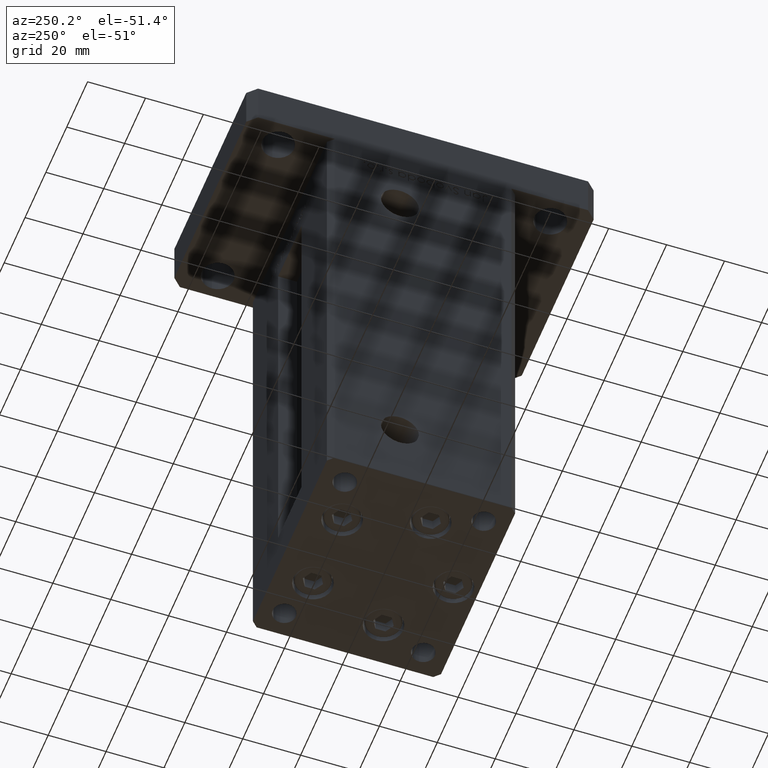
[diagram: clean part render]
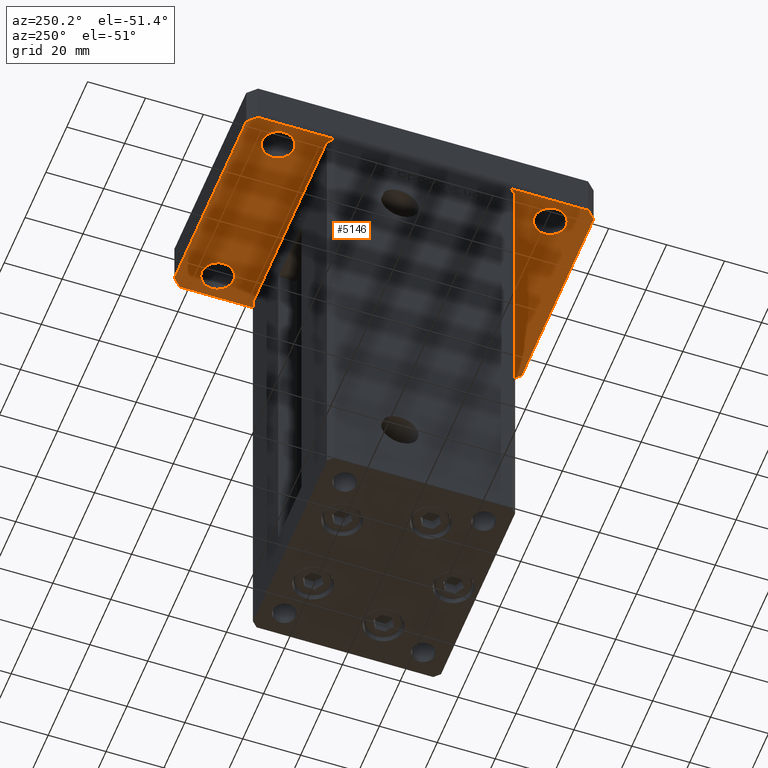
[diagram: same view with one face highlighted and labeled with its STEP entity id]
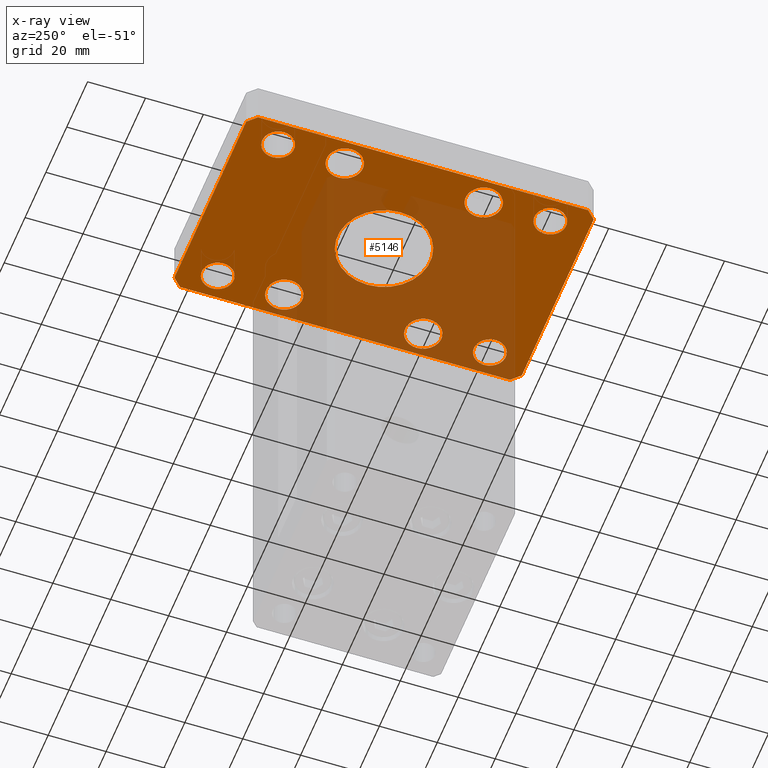
[diagram: x-ray of the same camera — body ghosted, the highlighted face saturated]
A machine part, auxiliary view. The second image highlights one B-rep face of the part: STEP entity #5146.
The next image is the same camera in x-ray: the body ghosted, the highlighted face saturated — about 46% of this face is hidden behind the body in this view.
In plain terms, the highlighted planar face has unit normal (0, 0, 1).
Its self-contained STEP definition (entity closure, byte-faithful):
#273 = LINE ( 'NONE', #24940, #40998 ) ;
#336 = DIRECTION ( 'NONE',  ( -0.7071067811865507924, -0.7071067811865442421, 0.000000000000000000 ) ) ;
#687 = ORIENTED_EDGE ( 'NONE', *, *, #38490, .F. ) ;
#722 = CIRCLE ( 'NONE', #28432, 5.499999999999994671 ) ;
#1077 = VERTEX_POINT ( 'NONE', #33748 ) ;
#1396 = CIRCLE ( 'NONE', #33435, 6.249999999999998224 ) ;
#1484 = ORIENTED_EDGE ( 'NONE', *, *, #9027, .T. ) ;
#1683 = LINE ( 'NONE', #20468, #36235 ) ;
#1791 = VERTEX_POINT ( 'NONE', #37146 ) ;
#1886 = EDGE_LOOP ( 'NONE', ( #50684, #12584 ) ) ;
#2349 = VERTEX_POINT ( 'NONE', #16273 ) ;
#2410 = VERTEX_POINT ( 'NONE', #42551 ) ;
#2537 = ORIENTED_EDGE ( 'NONE', *, *, #34919, .T. ) ;
#2787 = AXIS2_PLACEMENT_3D ( 'NONE', #7326, #39850, #23869 ) ;
#3444 = CARTESIAN_POINT ( 'NONE',  ( -34.49999999999992184, 59.99999999999997158, 0.000000000000000000 ) ) ;
#3447 = DIRECTION ( 'NONE',  ( 0.000000000000000000, 0.000000000000000000, 1.000000000000000000 ) ) ;
#3926 = DIRECTION ( 'NONE',  ( 1.000000000000000000, 0.000000000000000000, 0.000000000000000000 ) ) ;
#4123 = ORIENTED_EDGE ( 'NONE', *, *, #38648, .T. ) ;
#4140 = ORIENTED_EDGE ( 'NONE', *, *, #34947, .T. ) ;
#4328 = DIRECTION ( 'NONE',  ( 0.000000000000000000, 1.000000000000000000, 0.000000000000000000 ) ) ;
#4393 = LINE ( 'NONE', #49377, #46001 ) ;
#4702 = FACE_BOUND ( 'NONE', #42196, .T. ) ;
#5146 = ADVANCED_FACE ( 'NONE', ( #45900, #26116, #38572, #34503, #8771, #41831, #4702, #33706, #21228, #37776 ), #50227, .F. ) ;
#5372 = AXIS2_PLACEMENT_3D ( 'NONE', #25854, #42373, #17704 ) ;
#5953 = ORIENTED_EDGE ( 'NONE', *, *, #47015, .F. ) ;
#6263 = EDGE_CURVE ( 'NONE', #1791, #23581, #1683, .T. ) ;
#6273 = DIRECTION ( 'NONE',  ( 1.000000000000000000, 0.000000000000000000, 0.000000000000000000 ) ) ;
#7257 = DIRECTION ( 'NONE',  ( 1.000000000000000000, 0.000000000000000000, 0.000000000000000000 ) ) ;
#7326 = CARTESIAN_POINT ( 'NONE',  ( -28.99999999999999645, -24.00000000000002132, 0.000000000000000000 ) ) ;
#7540 = ORIENTED_EDGE ( 'NONE', *, *, #13568, .F. ) ;
#7771 = CIRCLE ( 'NONE', #48418, 6.249999999999998224 ) ;
#8030 = VECTOR ( 'NONE', #29401, 1000.000000000000000 ) ;
#8114 = CARTESIAN_POINT ( 'NONE',  ( 16.00000000000000000, 1.959434878635765131E-15, 0.000000000000000000 ) ) ;
#8183 = CIRCLE ( 'NONE', #24638, 6.249999999999998224 ) ;
#8239 = CARTESIAN_POINT ( 'NONE',  ( 29.00000000000000711, 47.00000000000000711, 0.000000000000000000 ) ) ;
#8462 = LINE ( 'NONE', #37471, #31263 ) ;
#8771 = FACE_BOUND ( 'NONE', #47608, .T. ) ;
#8769 = AXIS2_PLACEMENT_3D ( 'NONE', #15055, #23194, #51676 ) ;
#8772 = DIRECTION ( 'NONE',  ( 0.000000000000000000, 0.000000000000000000, 1.000000000000000000 ) ) ;
#9027 = EDGE_CURVE ( 'NONE', #40072, #25250, #34588, .T. ) ;
#9311 = CARTESIAN_POINT ( 'NONE',  ( 37.50000000000011369, 56.99999999999988631, 0.000000000000000000 ) ) ;
#9602 = EDGE_CURVE ( 'NONE', #11360, #26323, #722, .T. ) ;
#9944 = DIRECTION ( 'NONE',  ( 1.000000000000000000, 0.000000000000000000, 0.000000000000000000 ) ) ;
#10258 = AXIS2_PLACEMENT_3D ( 'NONE', #29216, #39192, #9944 ) ;
#10369 = ORIENTED_EDGE ( 'NONE', *, *, #26528, .T. ) ;
#10447 = CARTESIAN_POINT ( 'NONE',  ( -29.00000000000000355, 24.00000000000000000, 0.000000000000000000 ) ) ;
#10742 = VERTEX_POINT ( 'NONE', #17908 ) ;
#10981 = VERTEX_POINT ( 'NONE', #14511 ) ;
#11360 = VERTEX_POINT ( 'NONE', #31535 ) ;
#11621 = DIRECTION ( 'NONE',  ( 1.000000000000000000, 0.000000000000000000, 0.000000000000000000 ) ) ;
#11947 = ORIENTED_EDGE ( 'NONE', *, *, #41270, .T. ) ;
#12062 = DIRECTION ( 'NONE',  ( 1.000000000000000000, 0.000000000000000000, 0.000000000000000000 ) ) ;
#12092 = DIRECTION ( 'NONE',  ( 0.000000000000000000, 0.000000000000000000, -1.000000000000000000 ) ) ;
#12095 = AXIS2_PLACEMENT_3D ( 'NONE', #8239, #8772, #12823 ) ;
#12584 = ORIENTED_EDGE ( 'NONE', *, *, #22012, .T. ) ;
#12659 = EDGE_LOOP ( 'NONE', ( #23902, #5953, #52474, #53116, #35609, #37714, #7540, #48858 ) ) ;
#12823 = DIRECTION ( 'NONE',  ( 1.000000000000000000, 0.000000000000000000, 0.000000000000000000 ) ) ;
#12871 = DIRECTION ( 'NONE',  ( 0.000000000000000000, 0.000000000000000000, 1.000000000000000000 ) ) ;
#12983 = CARTESIAN_POINT ( 'NONE',  ( 29.00000000000000711, 24.00000000000000711, 0.000000000000000000 ) ) ;
#13563 = EDGE_CURVE ( 'NONE', #32743, #28561, #46331, .T. ) ;
#13568 = EDGE_CURVE ( 'NONE', #23581, #10742, #273, .T. ) ;
#13720 = CIRCLE ( 'NONE', #27577, 5.499999999999994671 ) ;
#14511 = CARTESIAN_POINT ( 'NONE',  ( -37.49999999999999289, -57.00000000000002132, 0.000000000000000000 ) ) ;
#14556 = CARTESIAN_POINT ( 'NONE',  ( -34.50000000000000000, 47.00000000000000000, 0.000000000000000000 ) ) ;
#14597 = ORIENTED_EDGE ( 'NONE', *, *, #49389, .F. ) ;
#14689 = CIRCLE ( 'NONE', #24222, 16.00000000000000000 ) ;
#14767 = AXIS2_PLACEMENT_3D ( 'NONE', #12983, #46060, #49855 ) ;
#15055 = CARTESIAN_POINT ( 'NONE',  ( 29.00000000000001066, -47.00000000000001421, 0.000000000000000000 ) ) ;
#15643 = CARTESIAN_POINT ( 'NONE',  ( 29.00000000000000355, -24.00000000000001421, 0.000000000000000000 ) ) ;
#15679 = DIRECTION ( 'NONE',  ( 0.000000000000000000, 0.000000000000000000, 1.000000000000000000 ) ) ;
#15713 = DIRECTION ( 'NONE',  ( 1.000000000000000000, 0.000000000000000000, 0.000000000000000000 ) ) ;
#16139 = VERTEX_POINT ( 'NONE', #26003 ) ;
#16273 = CARTESIAN_POINT ( 'NONE',  ( 22.75000000000000711, -24.00000000000001421, 0.000000000000000000 ) ) ;
#16868 = LINE ( 'NONE', #33940, #39904 ) ;
#17704 = DIRECTION ( 'NONE',  ( -1.000000000000000000, 0.000000000000000000, 0.000000000000000000 ) ) ;
#17747 = ORIENTED_EDGE ( 'NONE', *, *, #9602, .T. ) ;
#17908 = CARTESIAN_POINT ( 'NONE',  ( 37.50000000000011369, 56.99999999999988631, 0.000000000000000000 ) ) ;
#18073 = CARTESIAN_POINT ( 'NONE',  ( -23.50000000000000355, -47.00000000000002132, 0.000000000000000000 ) ) ;
#18119 = EDGE_CURVE ( 'NONE', #25250, #40072, #27796, .T. ) ;
#18575 = DIRECTION ( 'NONE',  ( 0.000000000000000000, 0.000000000000000000, 1.000000000000000000 ) ) ;
#18978 = CARTESIAN_POINT ( 'NONE',  ( 22.75000000000000355, 24.00000000000000711, 0.000000000000000000 ) ) ;
#19784 = CARTESIAN_POINT ( 'NONE',  ( -28.99999999999999645, -24.00000000000002132, 0.000000000000000000 ) ) ;
#20468 = CARTESIAN_POINT ( 'NONE',  ( 34.50000000000002132, -60.00000000000000711, 0.000000000000000000 ) ) ;
#20768 = EDGE_CURVE ( 'NONE', #10742, #32743, #46448, .T. ) ;
#20941 = VERTEX_POINT ( 'NONE', #45049 ) ;
#21006 = CARTESIAN_POINT ( 'NONE',  ( 34.50000000000013500, 59.99999999999998579, 0.000000000000000000 ) ) ;
#21228 = FACE_BOUND ( 'NONE', #38811, .T. ) ;
#21340 = EDGE_LOOP ( 'NONE', ( #17747, #2537 ) ) ;
#21581 = CIRCLE ( 'NONE', #12095, 5.499999999999994671 ) ;
#22012 = EDGE_CURVE ( 'NONE', #50610, #50798, #31410, .T. ) ;
#23121 = VERTEX_POINT ( 'NONE', #35543 ) ;
#23194 = DIRECTION ( 'NONE',  ( 0.000000000000000000, 0.000000000000000000, 1.000000000000000000 ) ) ;
#23323 = AXIS2_PLACEMENT_3D ( 'NONE', #27422, #43944, #31754 ) ;
#23581 = VERTEX_POINT ( 'NONE', #53066 ) ;
#23612 = AXIS2_PLACEMENT_3D ( 'NONE', #49746, #12871, #12062 ) ;
#23637 = CARTESIAN_POINT ( 'NONE',  ( 23.50000000000001776, -47.00000000000001421, 0.000000000000000000 ) ) ;
#23649 = CARTESIAN_POINT ( 'NONE',  ( 35.25000000000000000, -24.00000000000001421, 0.000000000000000000 ) ) ;
#23741 = DIRECTION ( 'NONE',  ( 1.000000000000000000, 0.000000000000000000, 0.000000000000000000 ) ) ;
#23869 = DIRECTION ( 'NONE',  ( 1.000000000000000000, 0.000000000000000000, 0.000000000000000000 ) ) ;
#23902 = ORIENTED_EDGE ( 'NONE', *, *, #32459, .F. ) ;
#24222 = AXIS2_PLACEMENT_3D ( 'NONE', #49498, #12092, #49220 ) ;
#24377 = CARTESIAN_POINT ( 'NONE',  ( 29.00000000000001066, -47.00000000000001421, 0.000000000000000000 ) ) ;
#24418 = VERTEX_POINT ( 'NONE', #28430 ) ;
#24638 = AXIS2_PLACEMENT_3D ( 'NONE', #36458, #25081, #3926 ) ;
#24940 = CARTESIAN_POINT ( 'NONE',  ( 37.50000000000011369, -56.99999999999990763, 0.000000000000000000 ) ) ;
#24966 = CIRCLE ( 'NONE', #10258, 6.249999999999998224 ) ;
#25081 = DIRECTION ( 'NONE',  ( 0.000000000000000000, 0.000000000000000000, 1.000000000000000000 ) ) ;
#25250 = VERTEX_POINT ( 'NONE', #26044 ) ;
#25370 = CIRCLE ( 'NONE', #23612, 5.499999999999994671 ) ;
#25549 = DIRECTION ( 'NONE',  ( -7.304098846218132695E-16, -1.000000000000000000, 0.000000000000000000 ) ) ;
#25854 = CARTESIAN_POINT ( 'NONE',  ( 0.000000000000000000, 0.000000000000000000, 0.000000000000000000 ) ) ;
#26003 = CARTESIAN_POINT ( 'NONE',  ( -37.49999999999990763, 57.00000000000000711, 0.000000000000000000 ) ) ;
#26006 = DIRECTION ( 'NONE',  ( -1.000000000000000000, -2.011273595335426847E-16, 0.000000000000000000 ) ) ;
#26044 = CARTESIAN_POINT ( 'NONE',  ( 34.50000000000000711, -47.00000000000001421, 0.000000000000000000 ) ) ;
#26116 = FACE_OUTER_BOUND ( 'NONE', #12659, .T. ) ;
#26323 = VERTEX_POINT ( 'NONE', #18073 ) ;
#26528 = EDGE_CURVE ( 'NONE', #2410, #29562, #25370, .T. ) ;
#26878 = DIRECTION ( 'NONE',  ( 0.000000000000000000, 0.000000000000000000, 1.000000000000000000 ) ) ;
#27422 = CARTESIAN_POINT ( 'NONE',  ( 29.00000000000000711, 24.00000000000000711, 0.000000000000000000 ) ) ;
#27577 = AXIS2_PLACEMENT_3D ( 'NONE', #39586, #26878, #6273 ) ;
#27796 = CIRCLE ( 'NONE', #8769, 5.499999999999998224 ) ;
#28430 = CARTESIAN_POINT ( 'NONE',  ( -35.25000000000000000, 24.00000000000000000, 0.000000000000000000 ) ) ;
#28432 = AXIS2_PLACEMENT_3D ( 'NONE', #44296, #52948, #32372 ) ;
#28561 = VERTEX_POINT ( 'NONE', #3444 ) ;
#29178 = EDGE_LOOP ( 'NONE', ( #29903, #11947 ) ) ;
#29216 = CARTESIAN_POINT ( 'NONE',  ( 29.00000000000000355, -24.00000000000001421, 0.000000000000000000 ) ) ;
#29401 = DIRECTION ( 'NONE',  ( -0.7071067811865335839, 0.7071067811865614505, 0.000000000000000000 ) ) ;
#29562 = VERTEX_POINT ( 'NONE', #39778 ) ;
#29630 = ORIENTED_EDGE ( 'NONE', *, *, #18119, .T. ) ;
#29845 = EDGE_CURVE ( 'NONE', #24418, #23121, #8183, .T. ) ;
#29903 = ORIENTED_EDGE ( 'NONE', *, *, #42329, .T. ) ;
#30294 = CARTESIAN_POINT ( 'NONE',  ( -34.49999999999999289, -60.00000000000002132, 0.000000000000000000 ) ) ;
#30312 = ORIENTED_EDGE ( 'NONE', *, *, #29845, .T. ) ;
#30544 = VECTOR ( 'NONE', #47342, 1000.000000000000000 ) ;
#30700 = DIRECTION ( 'NONE',  ( 0.7071067811865467956, 0.7071067811865483499, 0.000000000000000000 ) ) ;
#30976 = CARTESIAN_POINT ( 'NONE',  ( 0.000000000000000000, 0.000000000000000000, 0.000000000000000000 ) ) ;
#31180 = EDGE_CURVE ( 'NONE', #50798, #50610, #1396, .T. ) ;
#31263 = VECTOR ( 'NONE', #336, 1000.000000000000114 ) ;
#31410 = CIRCLE ( 'NONE', #2787, 6.249999999999998224 ) ;
#31535 = CARTESIAN_POINT ( 'NONE',  ( -34.49999999999999289, -47.00000000000002132, 0.000000000000000000 ) ) ;
#31754 = DIRECTION ( 'NONE',  ( 1.000000000000000000, 0.000000000000000000, 0.000000000000000000 ) ) ;
#31922 = CARTESIAN_POINT ( 'NONE',  ( -28.99999999999999645, -47.00000000000002132, 0.000000000000000000 ) ) ;
#31996 = CIRCLE ( 'NONE', #23323, 6.250000000000001776 ) ;
#32018 = VECTOR ( 'NONE', #26006, 1000.000000000000000 ) ;
#32238 = DIRECTION ( 'NONE',  ( 1.000000000000000000, 0.000000000000000000, -0.000000000000000000 ) ) ;
#32372 = DIRECTION ( 'NONE',  ( 1.000000000000000000, 0.000000000000000000, 0.000000000000000000 ) ) ;
#32459 = EDGE_CURVE ( 'NONE', #44338, #1791, #43801, .T. ) ;
#32743 = VERTEX_POINT ( 'NONE', #21006 ) ;
#33084 = CIRCLE ( 'NONE', #5372, 16.00000000000000000 ) ;
#33435 = AXIS2_PLACEMENT_3D ( 'NONE', #19784, #53382, #15713 ) ;
#33626 = AXIS2_PLACEMENT_3D ( 'NONE', #15643, #3447, #7257 ) ;
#33706 = FACE_BOUND ( 'NONE', #29178, .T. ) ;
#33748 = CARTESIAN_POINT ( 'NONE',  ( 35.25000000000000711, 24.00000000000000711, 0.000000000000000000 ) ) ;
#33940 = CARTESIAN_POINT ( 'NONE',  ( -37.49999999999999289, -57.00000000000002132, 0.000000000000000000 ) ) ;
#34415 = VERTEX_POINT ( 'NONE', #18978 ) ;
#34481 = CIRCLE ( 'NONE', #43982, 5.499999999999994671 ) ;
#34503 = FACE_BOUND ( 'NONE', #49252, .T. ) ;
#34588 = CIRCLE ( 'NONE', #47579, 5.499999999999998224 ) ;
#34919 = EDGE_CURVE ( 'NONE', #26323, #11360, #34481, .T. ) ;
#34947 = EDGE_CURVE ( 'NONE', #2349, #40884, #45735, .T. ) ;
#35130 = EDGE_CURVE ( 'NONE', #40884, #2349, #24966, .T. ) ;
#35420 = EDGE_CURVE ( 'NONE', #37500, #44040, #13720, .T. ) ;
#35543 = CARTESIAN_POINT ( 'NONE',  ( -22.75000000000000711, 24.00000000000000000, 0.000000000000000000 ) ) ;
#35609 = ORIENTED_EDGE ( 'NONE', *, *, #13563, .F. ) ;
#35862 = CARTESIAN_POINT ( 'NONE',  ( -35.25000000000000000, -24.00000000000002132, 0.000000000000000000 ) ) ;
#36235 = VECTOR ( 'NONE', #30700, 1000.000000000000000 ) ;
#36458 = CARTESIAN_POINT ( 'NONE',  ( -29.00000000000000355, 24.00000000000000000, 0.000000000000000000 ) ) ;
#36463 = DIRECTION ( 'NONE',  ( 0.000000000000000000, 0.000000000000000000, 1.000000000000000000 ) ) ;
#36543 = ORIENTED_EDGE ( 'NONE', *, *, #37930, .T. ) ;
#37146 = CARTESIAN_POINT ( 'NONE',  ( 34.50000000000002132, -60.00000000000000711, 0.000000000000000000 ) ) ;
#37471 = CARTESIAN_POINT ( 'NONE',  ( -34.49999999999992184, 59.99999999999997158, 0.000000000000000000 ) ) ;
#37500 = VERTEX_POINT ( 'NONE', #14556 ) ;
#37714 = ORIENTED_EDGE ( 'NONE', *, *, #20768, .F. ) ;
#37776 = FACE_BOUND ( 'NONE', #38958, .T. ) ;
#37930 = EDGE_CURVE ( 'NONE', #29562, #2410, #21581, .T. ) ;
#38152 = CIRCLE ( 'NONE', #14767, 6.250000000000001776 ) ;
#38333 = AXIS2_PLACEMENT_3D ( 'NONE', #40794, #36463, #23741 ) ;
#38469 = CARTESIAN_POINT ( 'NONE',  ( 34.50000000000013500, 59.99999999999998579, 0.000000000000000000 ) ) ;
#38490 = EDGE_CURVE ( 'NONE', #43482, #20941, #14689, .T. ) ;
#38572 = FACE_BOUND ( 'NONE', #21340, .T. ) ;
#38648 = EDGE_CURVE ( 'NONE', #23121, #24418, #7771, .T. ) ;
#38811 = EDGE_LOOP ( 'NONE', ( #30312, #4123 ) ) ;
#38958 = EDGE_LOOP ( 'NONE', ( #1484, #29630 ) ) ;
#39192 = DIRECTION ( 'NONE',  ( 0.000000000000000000, 0.000000000000000000, 1.000000000000000000 ) ) ;
#39586 = CARTESIAN_POINT ( 'NONE',  ( -29.00000000000000355, 47.00000000000000000, 0.000000000000000000 ) ) ;
#39778 = CARTESIAN_POINT ( 'NONE',  ( 23.50000000000001776, 47.00000000000000711, 0.000000000000000000 ) ) ;
#39850 = DIRECTION ( 'NONE',  ( 0.000000000000000000, 0.000000000000000000, 1.000000000000000000 ) ) ;
#39904 = VECTOR ( 'NONE', #45862, 1000.000000000000114 ) ;
#40072 = VERTEX_POINT ( 'NONE', #23637 ) ;
#40093 = DIRECTION ( 'NONE',  ( 0.000000000000000000, 0.000000000000000000, 1.000000000000000000 ) ) ;
#40794 = CARTESIAN_POINT ( 'NONE',  ( -29.00000000000000355, 47.00000000000000000, 0.000000000000000000 ) ) ;
#40879 = EDGE_LOOP ( 'NONE', ( #14597, #687 ) ) ;
#40884 = VERTEX_POINT ( 'NONE', #23649 ) ;
#40998 = VECTOR ( 'NONE', #4328, 1000.000000000000000 ) ;
#41270 = EDGE_CURVE ( 'NONE', #1077, #34415, #38152, .T. ) ;
#41780 = CIRCLE ( 'NONE', #38333, 5.499999999999994671 ) ;
#41831 = FACE_BOUND ( 'NONE', #1886, .T. ) ;
#42043 = CARTESIAN_POINT ( 'NONE',  ( -34.49999999999999289, -60.00000000000002132, 0.000000000000000000 ) ) ;
#42196 = EDGE_LOOP ( 'NONE', ( #4140, #49080 ) ) ;
#42329 = EDGE_CURVE ( 'NONE', #34415, #1077, #31996, .T. ) ;
#42373 = DIRECTION ( 'NONE',  ( 0.000000000000000000, 0.000000000000000000, -1.000000000000000000 ) ) ;
#42551 = CARTESIAN_POINT ( 'NONE',  ( 34.50000000000000000, 47.00000000000000711, 0.000000000000000000 ) ) ;
#43482 = VERTEX_POINT ( 'NONE', #8114 ) ;
#43511 = DIRECTION ( 'NONE',  ( 1.000000000000000000, 0.000000000000000000, 0.000000000000000000 ) ) ;
#43597 = DIRECTION ( 'NONE',  ( 1.000000000000000000, 0.000000000000000000, 0.000000000000000000 ) ) ;
#43801 = LINE ( 'NONE', #30294, #30544 ) ;
#43944 = DIRECTION ( 'NONE',  ( 0.000000000000000000, 0.000000000000000000, 1.000000000000000000 ) ) ;
#43982 = AXIS2_PLACEMENT_3D ( 'NONE', #31922, #44116, #43597 ) ;
#44040 = VERTEX_POINT ( 'NONE', #45641 ) ;
#44116 = DIRECTION ( 'NONE',  ( 0.000000000000000000, 0.000000000000000000, 1.000000000000000000 ) ) ;
#44296 = CARTESIAN_POINT ( 'NONE',  ( -28.99999999999999645, -47.00000000000002132, 0.000000000000000000 ) ) ;
#44338 = VERTEX_POINT ( 'NONE', #42043 ) ;
#44587 = CARTESIAN_POINT ( 'NONE',  ( -22.75000000000000000, -24.00000000000002132, 0.000000000000000000 ) ) ;
#45049 = CARTESIAN_POINT ( 'NONE',  ( -16.00000000000000000, 0.000000000000000000, 0.000000000000000000 ) ) ;
#45641 = CARTESIAN_POINT ( 'NONE',  ( -23.50000000000001066, 47.00000000000000000, 0.000000000000000000 ) ) ;
#45735 = CIRCLE ( 'NONE', #33626, 6.249999999999998224 ) ;
#45862 = DIRECTION ( 'NONE',  ( 0.7071067811865474617, -0.7071067811865474617, 0.000000000000000000 ) ) ;
#45900 = FACE_BOUND ( 'NONE', #40879, .T. ) ;
#46001 = VECTOR ( 'NONE', #25549, 1000.000000000000000 ) ;
#46060 = DIRECTION ( 'NONE',  ( 0.000000000000000000, 0.000000000000000000, 1.000000000000000000 ) ) ;
#46331 = LINE ( 'NONE', #38469, #32018 ) ;
#46448 = LINE ( 'NONE', #9311, #8030 ) ;
#47015 = EDGE_CURVE ( 'NONE', #10981, #44338, #16868, .T. ) ;
#47018 = EDGE_CURVE ( 'NONE', #16139, #10981, #4393, .T. ) ;
#47188 = EDGE_CURVE ( 'NONE', #28561, #16139, #8462, .T. ) ;
#47342 = DIRECTION ( 'NONE',  ( 1.000000000000000000, 2.011273595335427833E-16, 0.000000000000000000 ) ) ;
#47408 = ORIENTED_EDGE ( 'NONE', *, *, #51330, .T. ) ;
#47579 = AXIS2_PLACEMENT_3D ( 'NONE', #24377, #15679, #11621 ) ;
#47608 = EDGE_LOOP ( 'NONE', ( #48806, #47408 ) ) ;
#48418 = AXIS2_PLACEMENT_3D ( 'NONE', #10447, #18575, #43511 ) ;
#48806 = ORIENTED_EDGE ( 'NONE', *, *, #35420, .T. ) ;
#48858 = ORIENTED_EDGE ( 'NONE', *, *, #6263, .F. ) ;
#49080 = ORIENTED_EDGE ( 'NONE', *, *, #35130, .T. ) ;
#49220 = DIRECTION ( 'NONE',  ( -1.000000000000000000, 0.000000000000000000, 0.000000000000000000 ) ) ;
#49252 = EDGE_LOOP ( 'NONE', ( #36543, #10369 ) ) ;
#49377 = CARTESIAN_POINT ( 'NONE',  ( -37.49999999999990763, 57.00000000000000711, 0.000000000000000000 ) ) ;
#49389 = EDGE_CURVE ( 'NONE', #20941, #43482, #33084, .T. ) ;
#49498 = CARTESIAN_POINT ( 'NONE',  ( 0.000000000000000000, 0.000000000000000000, 0.000000000000000000 ) ) ;
#49746 = CARTESIAN_POINT ( 'NONE',  ( 29.00000000000000711, 47.00000000000000711, 0.000000000000000000 ) ) ;
#49855 = DIRECTION ( 'NONE',  ( 1.000000000000000000, 0.000000000000000000, 0.000000000000000000 ) ) ;
#50053 = AXIS2_PLACEMENT_3D ( 'NONE', #30976, #40093, #32238 ) ;
#50227 = PLANE ( 'NONE',  #50053 ) ;
#50610 = VERTEX_POINT ( 'NONE', #44587 ) ;
#50684 = ORIENTED_EDGE ( 'NONE', *, *, #31180, .T. ) ;
#50798 = VERTEX_POINT ( 'NONE', #35862 ) ;
#51330 = EDGE_CURVE ( 'NONE', #44040, #37500, #41780, .T. ) ;
#51676 = DIRECTION ( 'NONE',  ( 1.000000000000000000, 0.000000000000000000, 0.000000000000000000 ) ) ;
#52474 = ORIENTED_EDGE ( 'NONE', *, *, #47018, .F. ) ;
#52948 = DIRECTION ( 'NONE',  ( 0.000000000000000000, 0.000000000000000000, 1.000000000000000000 ) ) ;
#53066 = CARTESIAN_POINT ( 'NONE',  ( 37.50000000000011369, -56.99999999999990763, 0.000000000000000000 ) ) ;
#53116 = ORIENTED_EDGE ( 'NONE', *, *, #47188, .F. ) ;
#53382 = DIRECTION ( 'NONE',  ( 0.000000000000000000, 0.000000000000000000, 1.000000000000000000 ) ) ;